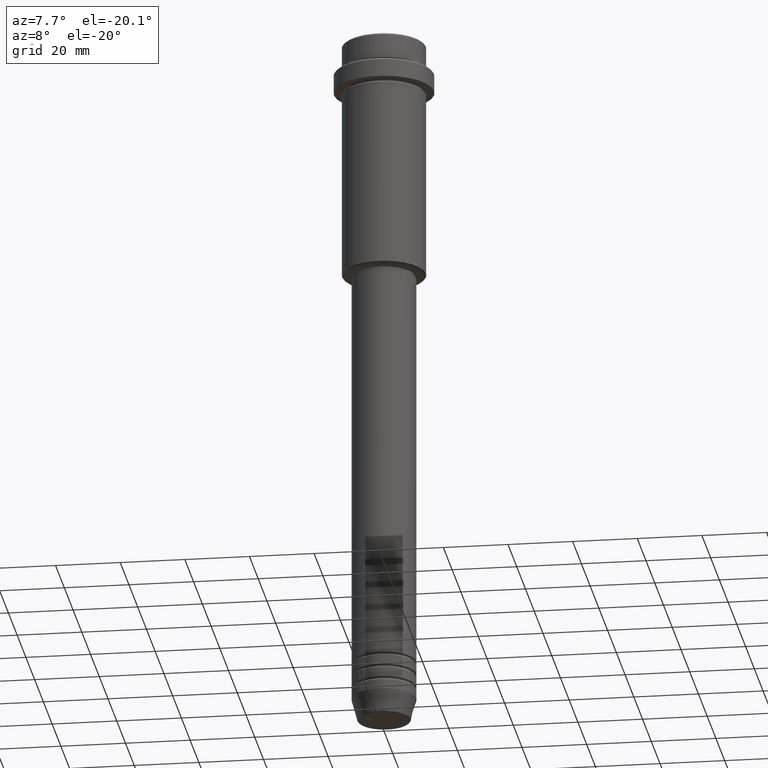
[diagram: clean part render]
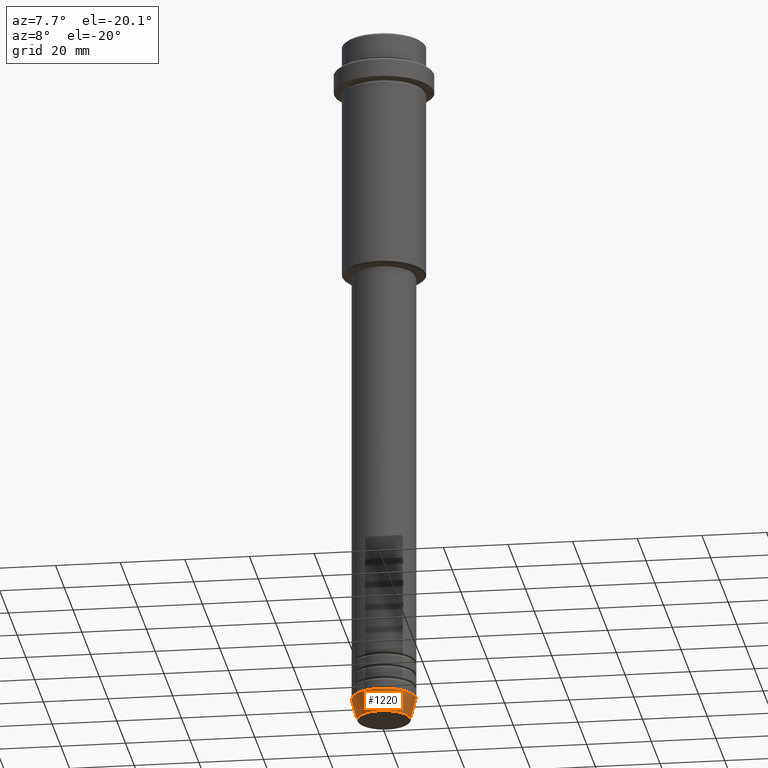
[diagram: same view with one face highlighted and labeled with its STEP entity id]
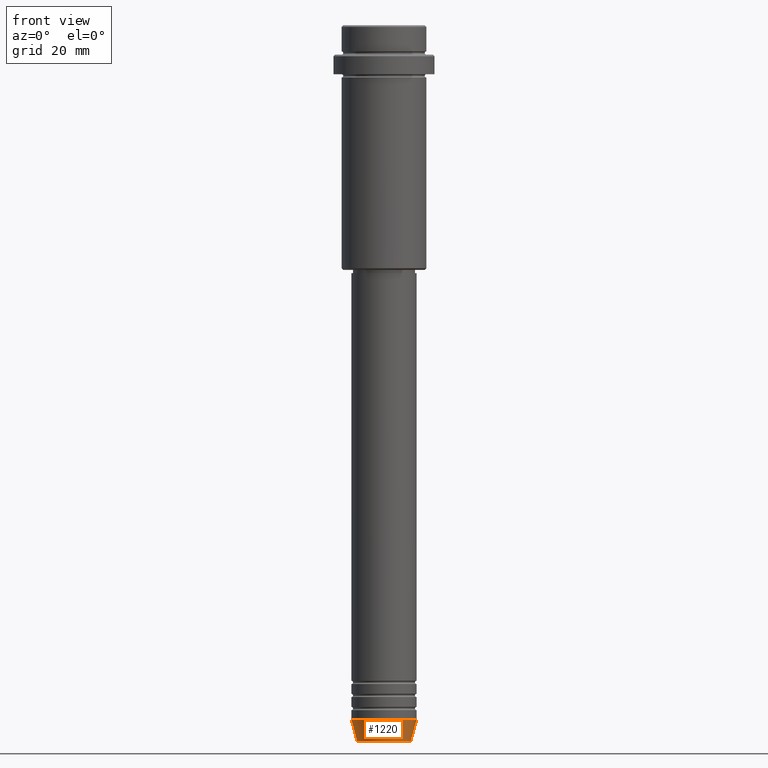
[diagram: same view with one face highlighted and labeled with its STEP entity id]
A machine part, auxiliary view. The second image highlights one B-rep face of the part: STEP entity #1220.
A second angle (front view) of the same face is appended — the face is thin or edge-on in the first view.
In plain terms, the highlighted conical surface has half-angle 15 deg.
Its self-contained STEP definition (entity closure, byte-faithful):
#68 = VECTOR ( 'NONE', #1221, 1000.000000000000114 ) ;
#97 = EDGE_CURVE ( 'NONE', #1099, #666, #608, .T. ) ;
#175 = DIRECTION ( 'NONE',  ( -0.000000000000000000, -0.000000000000000000, 1.000000000000000000 ) ) ;
#189 = ORIENTED_EDGE ( 'NONE', *, *, #97, .F. ) ;
#213 = CARTESIAN_POINT ( 'NONE',  ( 0.000000000000000000, 0.000000000000000000, -219.6294095225512137 ) ) ;
#224 = DIRECTION ( 'NONE',  ( -0.000000000000000000, -0.000000000000000000, 1.000000000000000000 ) ) ;
#236 = CARTESIAN_POINT ( 'NONE',  ( 10.00000000000000000, 0.000000000000000000, -212.9999999999999716 ) ) ;
#278 = AXIS2_PLACEMENT_3D ( 'NONE', #367, #1031, #822 ) ;
#299 = CARTESIAN_POINT ( 'NONE',  ( 0.000000000000000000, 0.000000000000000000, -212.9999999999999716 ) ) ;
#367 = CARTESIAN_POINT ( 'NONE',  ( 0.000000000000000000, 0.000000000000000000, -212.9999999999999716 ) ) ;
#525 = DIRECTION ( 'NONE',  ( 0.2588190451025214611, 0.000000000000000000, 0.9659258262890679791 ) ) ;
#571 = CIRCLE ( 'NONE', #614, 8.223655072137189492 ) ;
#594 = AXIS2_PLACEMENT_3D ( 'NONE', #299, #175, #618 ) ;
#602 = CARTESIAN_POINT ( 'NONE',  ( 10.00000000000000000, 0.000000000000000000, -212.9999999999999716 ) ) ;
#608 = CIRCLE ( 'NONE', #278, 10.00000000000000000 ) ;
#614 = AXIS2_PLACEMENT_3D ( 'NONE', #213, #224, #1110 ) ;
#618 = DIRECTION ( 'NONE',  ( 1.000000000000000000, 0.000000000000000000, 0.000000000000000000 ) ) ;
#639 = VECTOR ( 'NONE', #525, 1000.000000000000114 ) ;
#665 = VERTEX_POINT ( 'NONE', #862 ) ;
#666 = VERTEX_POINT ( 'NONE', #602 ) ;
#796 = CARTESIAN_POINT ( 'NONE',  ( -10.00000000000000000, 1.224646799147353256E-15, -212.9999999999999716 ) ) ;
#822 = DIRECTION ( 'NONE',  ( 1.000000000000000000, 0.000000000000000000, 0.000000000000000000 ) ) ;
#838 = EDGE_CURVE ( 'NONE', #665, #666, #1304, .T. ) ;
#862 = CARTESIAN_POINT ( 'NONE',  ( 8.223655072137189492, 0.000000000000000000, -219.6294095225512137 ) ) ;
#935 = ORIENTED_EDGE ( 'NONE', *, *, #838, .T. ) ;
#952 = EDGE_LOOP ( 'NONE', ( #1320, #1368, #935, #189 ) ) ;
#975 = CONICAL_SURFACE ( 'NONE', #594, 10.00000000000000000, 0.2617993877991502405 ) ;
#1031 = DIRECTION ( 'NONE',  ( -0.000000000000000000, -0.000000000000000000, 1.000000000000000000 ) ) ;
#1085 = FACE_OUTER_BOUND ( 'NONE', #952, .T. ) ;
#1099 = VERTEX_POINT ( 'NONE', #1391 ) ;
#1110 = DIRECTION ( 'NONE',  ( 1.000000000000000000, 0.000000000000000000, 0.000000000000000000 ) ) ;
#1190 = VERTEX_POINT ( 'NONE', #1298 ) ;
#1220 = ADVANCED_FACE ( 'NONE', ( #1085 ), #975, .T. ) ;
#1221 = DIRECTION ( 'NONE',  ( -0.2588190451025214611, 3.169619151431774186E-17, 0.9659258262890679791 ) ) ;
#1256 = EDGE_CURVE ( 'NONE', #1190, #1099, #1325, .T. ) ;
#1298 = CARTESIAN_POINT ( 'NONE',  ( -8.223655072137189492, 1.115877042642911856E-15, -219.6294095225512137 ) ) ;
#1304 = LINE ( 'NONE', #236, #639 ) ;
#1320 = ORIENTED_EDGE ( 'NONE', *, *, #1256, .F. ) ;
#1325 = LINE ( 'NONE', #796, #68 ) ;
#1368 = ORIENTED_EDGE ( 'NONE', *, *, #1374, .T. ) ;
#1374 = EDGE_CURVE ( 'NONE', #1190, #665, #571, .T. ) ;
#1391 = CARTESIAN_POINT ( 'NONE',  ( -10.00000000000000000, 1.224646799147353256E-15, -212.9999999999999716 ) ) ;